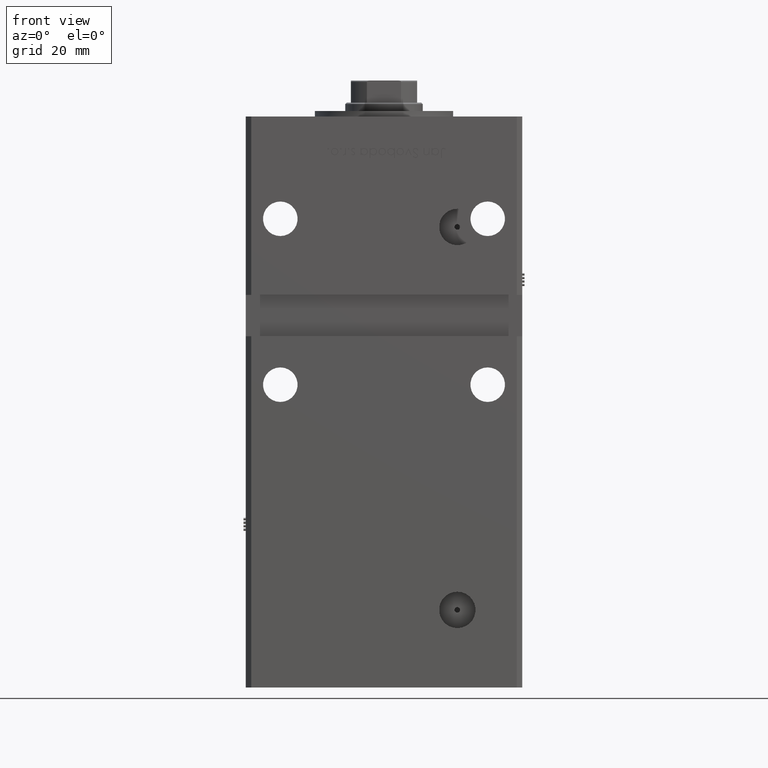
[diagram: clean part render]
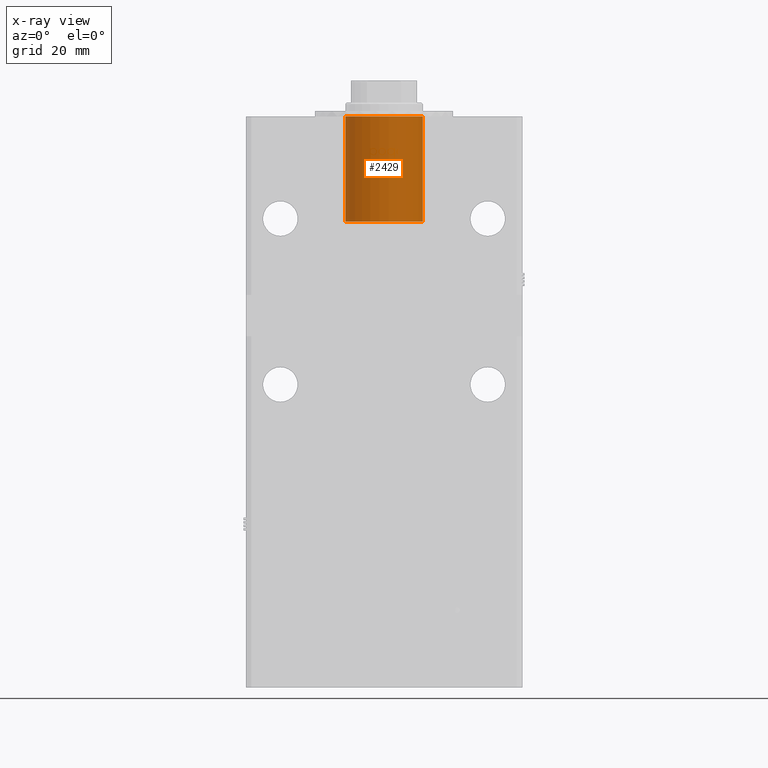
[diagram: x-ray — body ghosted, one internal face saturated and labeled with its STEP entity id]
A machine part, front view, then the same camera in x-ray: the body is ghosted and one INTERNAL B-rep face — a face not visible from any outside direction — is saturated and labeled: STEP entity #2429.
In plain terms, the highlighted cylindrical surface (partial cylindrical patch) has radius 14 mm, axis along (0, 0, 1).
Its self-contained STEP definition (entity closure, byte-faithful):
#16 = DIRECTION ( 'NONE',  ( 1.000000000000000000, 0.000000000000000000, 0.000000000000000000 ) ) ;
#619 = AXIS2_PLACEMENT_3D ( 'NONE', #54477, #45924, #1456 ) ;
#942 = DIRECTION ( 'NONE',  ( -0.000000000000000000, -0.000000000000000000, 1.000000000000000000 ) ) ;
#1456 = DIRECTION ( 'NONE',  ( 1.000000000000000000, 0.000000000000000000, 0.000000000000000000 ) ) ;
#2429 = ADVANCED_FACE ( 'NONE', ( #39994 ), #4939, .F. ) ;
#2441 = LINE ( 'NONE', #50327, #39217 ) ;
#2562 = LINE ( 'NONE', #33599, #55763 ) ;
#2624 = CARTESIAN_POINT ( 'NONE',  ( 14.00000000000000000, -6.938893903907228378E-15, -38.00000000000000000 ) ) ;
#4939 = CYLINDRICAL_SURFACE ( 'NONE', #33305, 14.00000000000000000 ) ;
#8108 = ORIENTED_EDGE ( 'NONE', *, *, #55592, .F. ) ;
#10302 = EDGE_LOOP ( 'NONE', ( #38821, #36674, #18273, #8108 ) ) ;
#12778 = VERTEX_POINT ( 'NONE', #2624 ) ;
#13161 = CARTESIAN_POINT ( 'NONE',  ( 14.00000000000000000, -6.938893903907228378E-15, 0.000000000000000000 ) ) ;
#13612 = AXIS2_PLACEMENT_3D ( 'NONE', #31356, #39072, #16 ) ;
#14040 = DIRECTION ( 'NONE',  ( 1.000000000000000000, 0.000000000000000000, 0.000000000000000000 ) ) ;
#17507 = EDGE_CURVE ( 'NONE', #18260, #38064, #2562, .T. ) ;
#17520 = DIRECTION ( 'NONE',  ( -0.000000000000000000, -0.000000000000000000, 1.000000000000000000 ) ) ;
#18260 = VERTEX_POINT ( 'NONE', #21430 ) ;
#18273 = ORIENTED_EDGE ( 'NONE', *, *, #31256, .T. ) ;
#21430 = CARTESIAN_POINT ( 'NONE',  ( -14.00000000000000000, -5.224388385100933937E-15, -38.00000000000000000 ) ) ;
#31256 = EDGE_CURVE ( 'NONE', #38064, #54183, #37913, .T. ) ;
#31356 = CARTESIAN_POINT ( 'NONE',  ( 0.000000000000000000, -6.938893903907228378E-15, -38.00000000000000000 ) ) ;
#33305 = AXIS2_PLACEMENT_3D ( 'NONE', #39713, #942, #14040 ) ;
#33599 = CARTESIAN_POINT ( 'NONE',  ( -14.00000000000000000, -5.224388385100933937E-15, -38.00000000000000000 ) ) ;
#36674 = ORIENTED_EDGE ( 'NONE', *, *, #17507, .T. ) ;
#37913 = CIRCLE ( 'NONE', #619, 14.00000000000000000 ) ;
#38064 = VERTEX_POINT ( 'NONE', #39438 ) ;
#38821 = ORIENTED_EDGE ( 'NONE', *, *, #53159, .F. ) ;
#39072 = DIRECTION ( 'NONE',  ( 0.000000000000000000, 0.000000000000000000, 1.000000000000000000 ) ) ;
#39217 = VECTOR ( 'NONE', #17520, 1000.000000000000000 ) ;
#39438 = CARTESIAN_POINT ( 'NONE',  ( -14.00000000000000000, -5.224388385100933937E-15, 0.000000000000000000 ) ) ;
#39713 = CARTESIAN_POINT ( 'NONE',  ( 0.000000000000000000, -6.938893903907228378E-15, -38.00000000000000000 ) ) ;
#39994 = FACE_OUTER_BOUND ( 'NONE', #10302, .T. ) ;
#45924 = DIRECTION ( 'NONE',  ( 0.000000000000000000, 0.000000000000000000, 1.000000000000000000 ) ) ;
#50327 = CARTESIAN_POINT ( 'NONE',  ( 14.00000000000000000, -6.938893903907228378E-15, -38.00000000000000000 ) ) ;
#53159 = EDGE_CURVE ( 'NONE', #18260, #12778, #54599, .T. ) ;
#54183 = VERTEX_POINT ( 'NONE', #13161 ) ;
#54477 = CARTESIAN_POINT ( 'NONE',  ( 0.000000000000000000, -6.938893903907228378E-15, 0.000000000000000000 ) ) ;
#54599 = CIRCLE ( 'NONE', #13612, 14.00000000000000000 ) ;
#55567 = DIRECTION ( 'NONE',  ( -0.000000000000000000, -0.000000000000000000, 1.000000000000000000 ) ) ;
#55592 = EDGE_CURVE ( 'NONE', #12778, #54183, #2441, .T. ) ;
#55763 = VECTOR ( 'NONE', #55567, 1000.000000000000000 ) ;